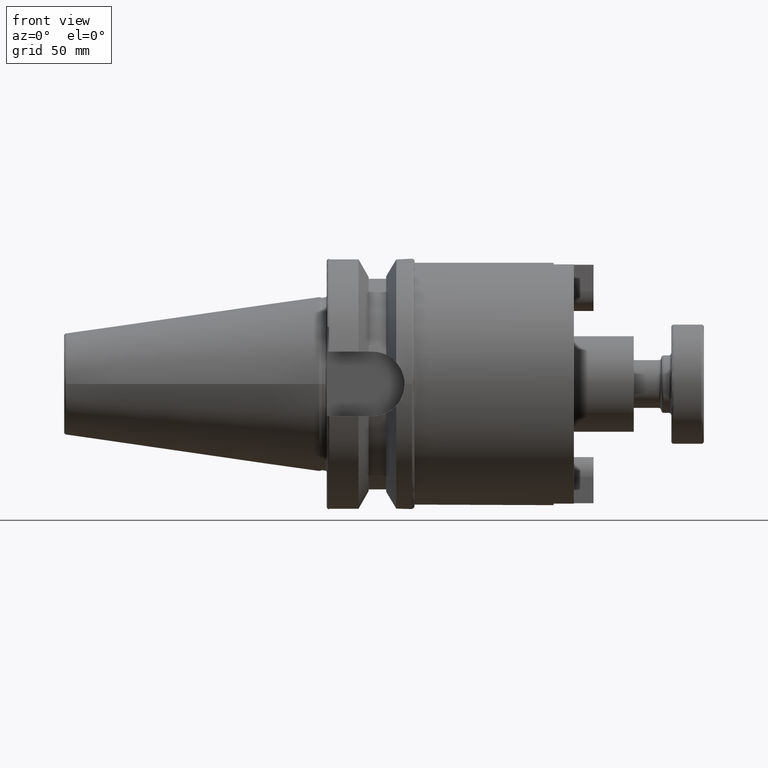
[diagram: clean part render]
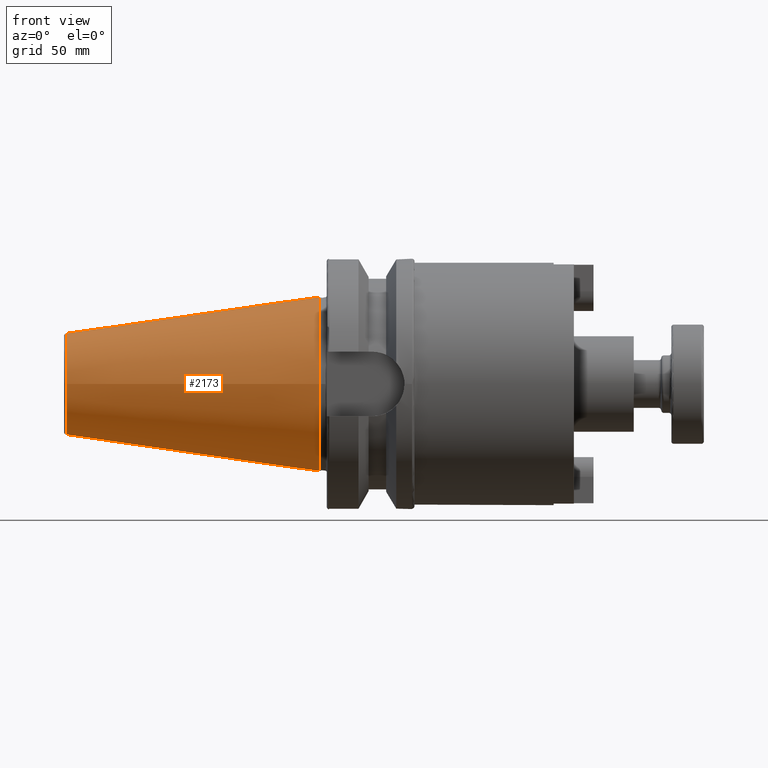
[diagram: same view with one face highlighted and labeled with its STEP entity id]
A machine part, front view. The second image highlights one B-rep face of the part: STEP entity #2173.
In plain terms, the highlighted conical surface has half-angle 8.297 deg.
Its self-contained STEP definition (entity closure, byte-faithful):
#516=CONICAL_SURFACE('',#2468,27.5644776223802,0.144812498238939);
#577=CIRCLE('',#2464,20.2039552447604);
#578=CIRCLE('',#2465,20.2039552447604);
#581=CIRCLE('',#2469,34.925);
#706=FACE_OUTER_BOUND('',#819,.T.);
#819=EDGE_LOOP('',(#1772,#1773,#1774,#1775,#1776));
#956=LINE('',#3721,#1077);
#1077=VECTOR('',#2900,27.5644776223802);
#1221=VERTEX_POINT('',#3711);
#1222=VERTEX_POINT('',#3712);
#1224=VERTEX_POINT('',#3719);
#1423=EDGE_CURVE('',#1221,#1222,#577,.T.);
#1424=EDGE_CURVE('',#1222,#1221,#578,.T.);
#1427=EDGE_CURVE('',#1224,#1224,#581,.T.);
#1428=EDGE_CURVE('',#1224,#1221,#956,.T.);
#1772=ORIENTED_EDGE('',*,*,#1427,.F.);
#1773=ORIENTED_EDGE('',*,*,#1428,.T.);
#1774=ORIENTED_EDGE('',*,*,#1423,.T.);
#1775=ORIENTED_EDGE('',*,*,#1424,.T.);
#1776=ORIENTED_EDGE('',*,*,#1428,.F.);
#2173=ADVANCED_FACE('',(#706),#516,.T.);
#2464=AXIS2_PLACEMENT_3D('',#3713,#2888,#2889);
#2465=AXIS2_PLACEMENT_3D('',#3714,#2890,#2891);
#2468=AXIS2_PLACEMENT_3D('',#3718,#2896,#2897);
#2469=AXIS2_PLACEMENT_3D('',#3720,#2898,#2899);
#2888=DIRECTION('center_axis',(1.,0.,0.));
#2889=DIRECTION('ref_axis',(0.,0.,-1.));
#2890=DIRECTION('center_axis',(1.,0.,0.));
#2891=DIRECTION('ref_axis',(0.,0.,-1.));
#2896=DIRECTION('center_axis',(1.,0.,0.));
#2897=DIRECTION('ref_axis',(0.,1.,0.));
#2898=DIRECTION('center_axis',(1.,0.,0.));
#2899=DIRECTION('ref_axis',(0.,0.,-1.));
#2900=DIRECTION('',(-0.989532981063281,0.144306893071729,1.76724974695192E-17));
#3711=CARTESIAN_POINT('',(-100.944306893072,-20.2039552447604,-2.47427091206122E-15));
#3712=CARTESIAN_POINT('',(-100.944306893072,-2.47427091206122E-15,20.2039552447604));
#3713=CARTESIAN_POINT('Origin',(-100.944306893072,0.,0.));
#3714=CARTESIAN_POINT('Origin',(-100.944306893072,0.,0.));
#3718=CARTESIAN_POINT('Origin',(-50.4721534465359,0.,0.));
#3719=CARTESIAN_POINT('',(-8.88178419700125E-15,-34.925,-4.27707894602213E-15));
#3720=CARTESIAN_POINT('Origin',(0.,0.,0.));
#3721=CARTESIAN_POINT('',(-50.4721534465359,-27.5644776223802,-3.37567492904167E-15));